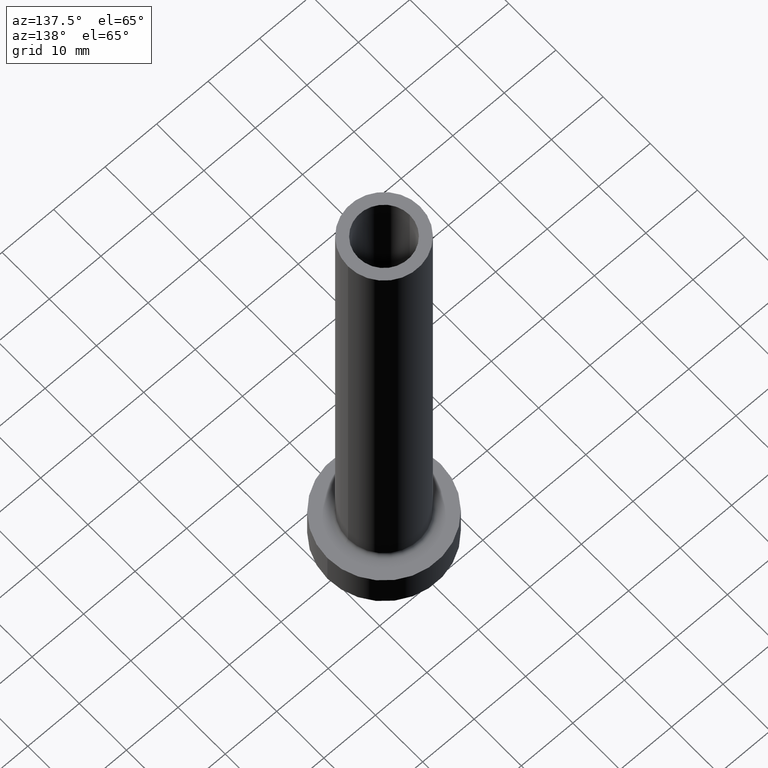
[diagram: clean part render]
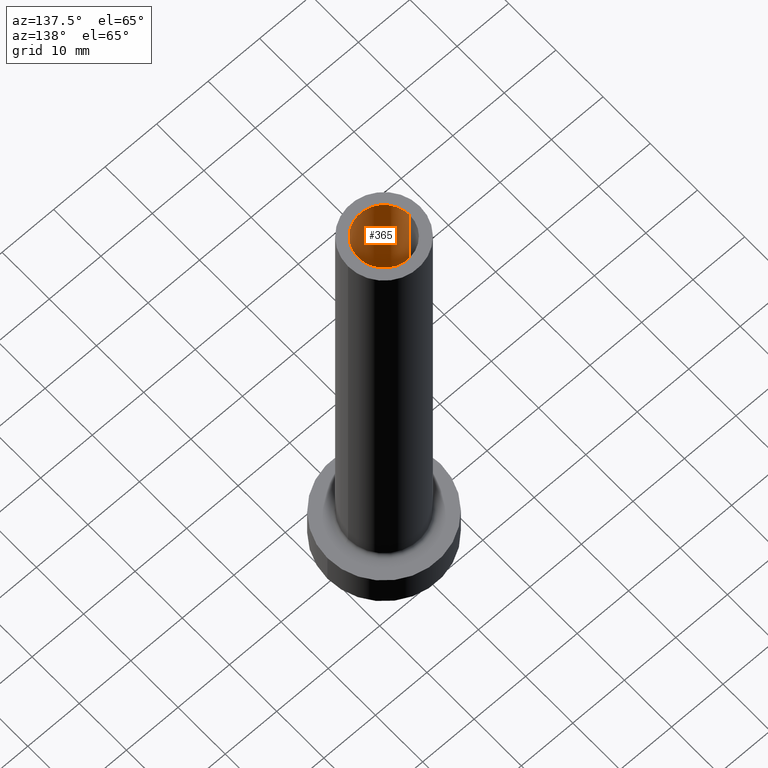
[diagram: same view with one face highlighted and labeled with its STEP entity id]
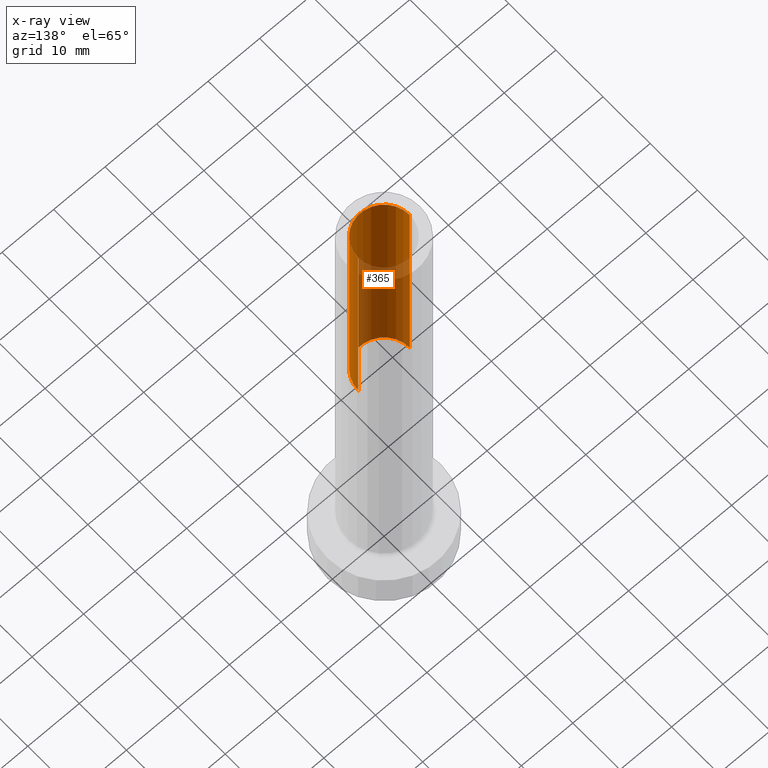
[diagram: x-ray of the same camera — body ghosted, the highlighted face saturated]
A machine part, auxiliary view. The second image highlights one B-rep face of the part: STEP entity #365.
The next image is the same camera in x-ray: the body ghosted, the highlighted face saturated — about 47% of this face is hidden behind the body in this view.
In plain terms, the highlighted cylindrical surface (edge-blend (fillet) strip) has radius 5 mm, axis along (0, 0, -1).
Its self-contained STEP definition (entity closure, byte-faithful):
#15 = DIRECTION ( 'NONE',  ( 0.000000000000000000, 0.000000000000000000, -1.000000000000000000 ) ) ;
#26 = CARTESIAN_POINT ( 'NONE',  ( 0.000000000000000000, 0.000000000000000000, 55.00000000000000711 ) ) ;
#32 = ORIENTED_EDGE ( 'NONE', *, *, #423, .F. ) ;
#51 = VERTEX_POINT ( 'NONE', #90 ) ;
#65 = ORIENTED_EDGE ( 'NONE', *, *, #312, .T. ) ;
#76 = ORIENTED_EDGE ( 'NONE', *, *, #318, .F. ) ;
#78 = VECTOR ( 'NONE', #289, 1000.000000000000000 ) ;
#86 = CYLINDRICAL_SURFACE ( 'NONE', #117, 5.000000000000000000 ) ;
#90 = CARTESIAN_POINT ( 'NONE',  ( 5.000000000000000000, 6.123233995736765296E-16, 55.00000000000000711 ) ) ;
#100 = AXIS2_PLACEMENT_3D ( 'NONE', #170, #278, #314 ) ;
#117 = AXIS2_PLACEMENT_3D ( 'NONE', #229, #15, #198 ) ;
#119 = VERTEX_POINT ( 'NONE', #201 ) ;
#131 = FACE_OUTER_BOUND ( 'NONE', #337, .T. ) ;
#149 = CARTESIAN_POINT ( 'NONE',  ( 5.000000000000000000, 6.123233995736765296E-16, 100.0000000000000000 ) ) ;
#170 = CARTESIAN_POINT ( 'NONE',  ( 0.000000000000000000, 0.000000000000000000, 100.0000000000000000 ) ) ;
#174 = DIRECTION ( 'NONE',  ( 0.000000000000000000, 0.000000000000000000, -1.000000000000000000 ) ) ;
#198 = DIRECTION ( 'NONE',  ( -1.000000000000000000, 0.000000000000000000, 0.000000000000000000 ) ) ;
#201 = CARTESIAN_POINT ( 'NONE',  ( -5.000000000000000000, 0.000000000000000000, 55.00000000000000711 ) ) ;
#229 = CARTESIAN_POINT ( 'NONE',  ( 0.000000000000000000, 0.000000000000000000, 100.0000000000000000 ) ) ;
#247 = LINE ( 'NONE', #383, #78 ) ;
#256 = VERTEX_POINT ( 'NONE', #149 ) ;
#278 = DIRECTION ( 'NONE',  ( 0.000000000000000000, 0.000000000000000000, 1.000000000000000000 ) ) ;
#289 = DIRECTION ( 'NONE',  ( 0.000000000000000000, 0.000000000000000000, -1.000000000000000000 ) ) ;
#297 = EDGE_CURVE ( 'NONE', #256, #51, #378, .T. ) ;
#302 = CIRCLE ( 'NONE', #360, 5.000000000000000000 ) ;
#309 = VECTOR ( 'NONE', #174, 1000.000000000000000 ) ;
#312 = EDGE_CURVE ( 'NONE', #420, #256, #447, .T. ) ;
#314 = DIRECTION ( 'NONE',  ( 1.000000000000000000, 0.000000000000000000, 0.000000000000000000 ) ) ;
#318 = EDGE_CURVE ( 'NONE', #119, #51, #302, .T. ) ;
#337 = EDGE_LOOP ( 'NONE', ( #65, #431, #76, #32 ) ) ;
#360 = AXIS2_PLACEMENT_3D ( 'NONE', #26, #412, #446 ) ;
#365 = ADVANCED_FACE ( 'NONE', ( #131 ), #86, .F. ) ;
#376 = CARTESIAN_POINT ( 'NONE',  ( 5.000000000000000000, 6.123233995736765296E-16, 100.0000000000000000 ) ) ;
#378 = LINE ( 'NONE', #376, #309 ) ;
#383 = CARTESIAN_POINT ( 'NONE',  ( -5.000000000000000000, 0.000000000000000000, 100.0000000000000000 ) ) ;
#412 = DIRECTION ( 'NONE',  ( 0.000000000000000000, 0.000000000000000000, 1.000000000000000000 ) ) ;
#420 = VERTEX_POINT ( 'NONE', #459 ) ;
#423 = EDGE_CURVE ( 'NONE', #420, #119, #247, .T. ) ;
#431 = ORIENTED_EDGE ( 'NONE', *, *, #297, .T. ) ;
#446 = DIRECTION ( 'NONE',  ( 1.000000000000000000, 0.000000000000000000, 0.000000000000000000 ) ) ;
#447 = CIRCLE ( 'NONE', #100, 5.000000000000000000 ) ;
#459 = CARTESIAN_POINT ( 'NONE',  ( -5.000000000000000000, 0.000000000000000000, 100.0000000000000000 ) ) ;